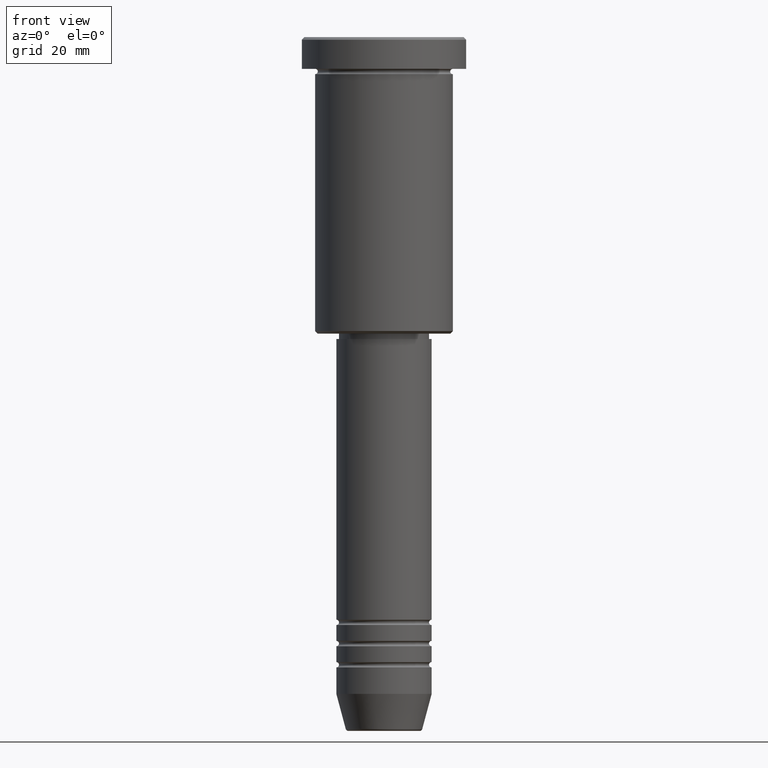
[diagram: clean part render]
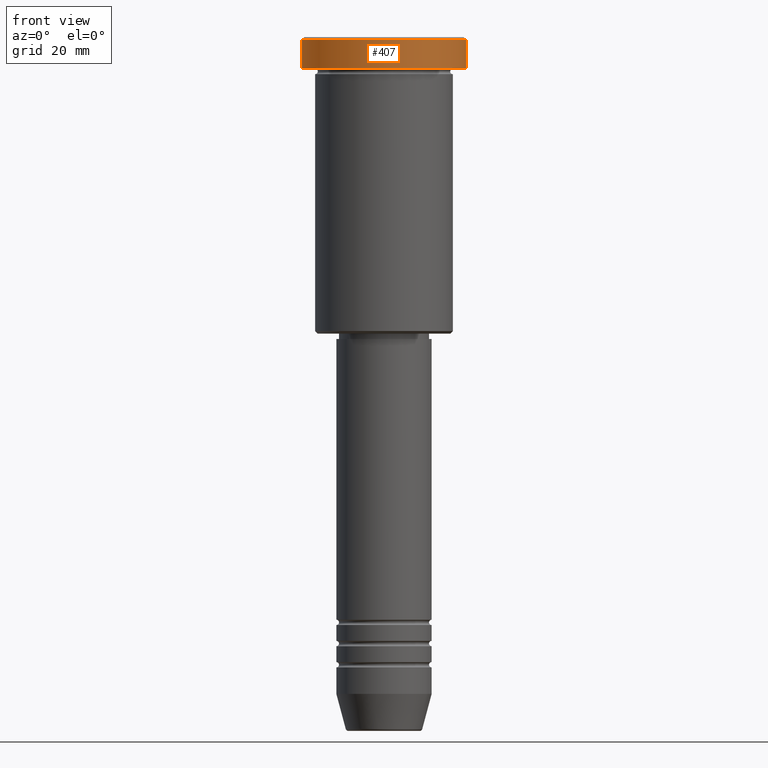
[diagram: same view with one face highlighted and labeled with its STEP entity id]
A machine part, front view. The second image highlights one B-rep face of the part: STEP entity #407.
In plain terms, the highlighted cylindrical surface (partial cylindrical patch) has radius 15.5 mm, axis along (-0, -0, 1).
Its self-contained STEP definition (entity closure, byte-faithful):
#42 = CARTESIAN_POINT ( 'NONE',  ( -15.50000000000000000, 1.898202538678397557E-15, 0.000000000000000000 ) ) ;
#82 = AXIS2_PLACEMENT_3D ( 'NONE', #684, #1050, #593 ) ;
#88 = CARTESIAN_POINT ( 'NONE',  ( 15.50000000000000000, 0.000000000000000000, 0.000000000000000000 ) ) ;
#135 = DIRECTION ( 'NONE',  ( -0.000000000000000000, -0.000000000000000000, 1.000000000000000000 ) ) ;
#149 = CARTESIAN_POINT ( 'NONE',  ( 15.50000000000000000, 0.000000000000000000, -0.4999999999999709677 ) ) ;
#156 = DIRECTION ( 'NONE',  ( 1.000000000000000000, 0.000000000000000000, 0.000000000000000000 ) ) ;
#326 = DIRECTION ( 'NONE',  ( 1.000000000000000000, 0.000000000000000000, 0.000000000000000000 ) ) ;
#340 = CYLINDRICAL_SURFACE ( 'NONE', #989, 15.50000000000000000 ) ;
#354 = AXIS2_PLACEMENT_3D ( 'NONE', #683, #770, #326 ) ;
#407 = ADVANCED_FACE ( 'NONE', ( #890 ), #340, .T. ) ;
#427 = DIRECTION ( 'NONE',  ( -0.000000000000000000, -0.000000000000000000, 1.000000000000000000 ) ) ;
#445 = VECTOR ( 'NONE', #652, 1000.000000000000000 ) ;
#509 = CARTESIAN_POINT ( 'NONE',  ( 0.000000000000000000, 0.000000000000000000, 0.000000000000000000 ) ) ;
#526 = EDGE_CURVE ( 'NONE', #1125, #1139, #1079, .T. ) ;
#553 = VERTEX_POINT ( 'NONE', #931 ) ;
#579 = CARTESIAN_POINT ( 'NONE',  ( 15.50000000000000000, 0.000000000000000000, -5.999999999999995559 ) ) ;
#593 = DIRECTION ( 'NONE',  ( 1.000000000000000000, 0.000000000000000000, 0.000000000000000000 ) ) ;
#594 = LINE ( 'NONE', #42, #1183 ) ;
#652 = DIRECTION ( 'NONE',  ( -0.000000000000000000, -0.000000000000000000, 1.000000000000000000 ) ) ;
#671 = CIRCLE ( 'NONE', #82, 15.50000000000000000 ) ;
#683 = CARTESIAN_POINT ( 'NONE',  ( 0.000000000000000000, 0.000000000000000000, -5.999999999999995559 ) ) ;
#684 = CARTESIAN_POINT ( 'NONE',  ( 0.000000000000000000, 0.000000000000000000, -0.4999999999999709677 ) ) ;
#689 = ORIENTED_EDGE ( 'NONE', *, *, #1132, .T. ) ;
#726 = ORIENTED_EDGE ( 'NONE', *, *, #1008, .T. ) ;
#729 = EDGE_CURVE ( 'NONE', #553, #746, #594, .T. ) ;
#746 = VERTEX_POINT ( 'NONE', #747 ) ;
#747 = CARTESIAN_POINT ( 'NONE',  ( -15.50000000000000000, 1.898202538678397557E-15, -0.4999999999999709677 ) ) ;
#770 = DIRECTION ( 'NONE',  ( -0.000000000000000000, -0.000000000000000000, 1.000000000000000000 ) ) ;
#849 = EDGE_LOOP ( 'NONE', ( #1088, #726, #1114, #689 ) ) ;
#890 = FACE_OUTER_BOUND ( 'NONE', #849, .T. ) ;
#931 = CARTESIAN_POINT ( 'NONE',  ( -15.50000000000000000, 1.898202538678397557E-15, -5.999999999999995559 ) ) ;
#989 = AXIS2_PLACEMENT_3D ( 'NONE', #509, #427, #156 ) ;
#1008 = EDGE_CURVE ( 'NONE', #553, #1125, #1092, .T. ) ;
#1050 = DIRECTION ( 'NONE',  ( 0.000000000000000000, 0.000000000000000000, -1.000000000000000000 ) ) ;
#1079 = LINE ( 'NONE', #88, #445 ) ;
#1088 = ORIENTED_EDGE ( 'NONE', *, *, #729, .F. ) ;
#1092 = CIRCLE ( 'NONE', #354, 15.50000000000000000 ) ;
#1114 = ORIENTED_EDGE ( 'NONE', *, *, #526, .T. ) ;
#1125 = VERTEX_POINT ( 'NONE', #579 ) ;
#1132 = EDGE_CURVE ( 'NONE', #1139, #746, #671, .T. ) ;
#1139 = VERTEX_POINT ( 'NONE', #149 ) ;
#1183 = VECTOR ( 'NONE', #135, 1000.000000000000000 ) ;